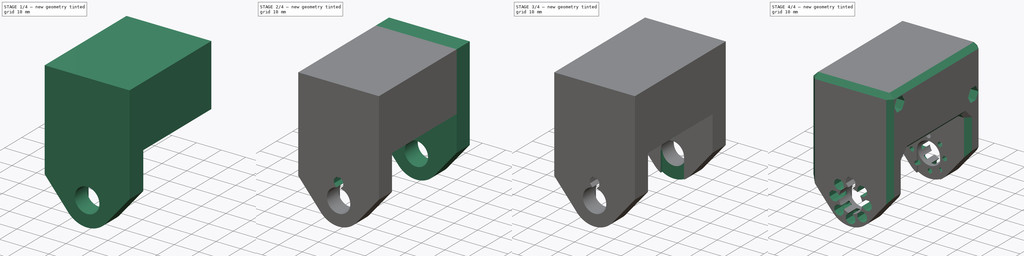
[diagram: build sequence overview — one tinted view per stage of 4, left to right]
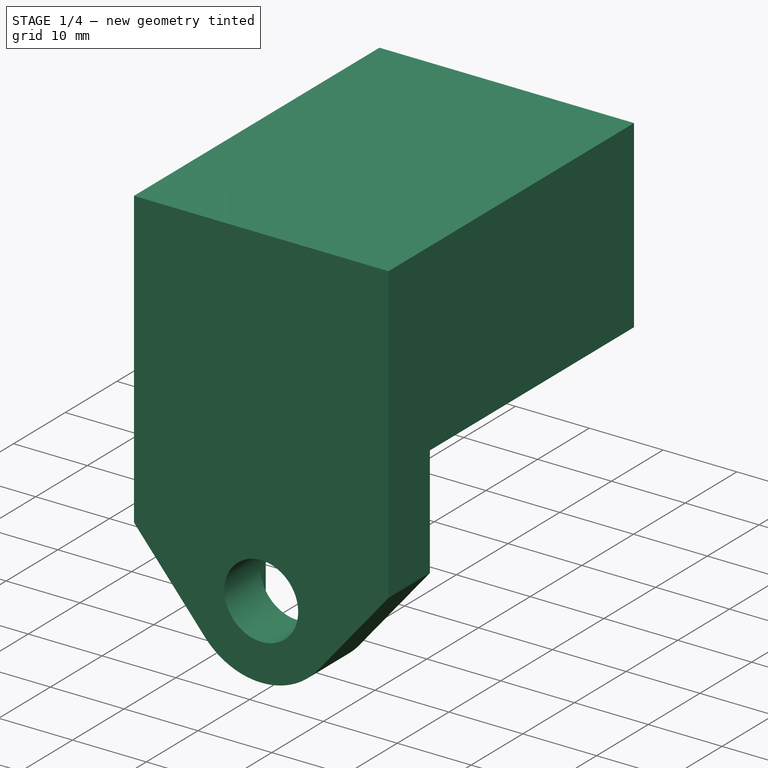
[diagram: stage 1 of 4 — iso view after this stage's code; geometry added in this stage tinted green]
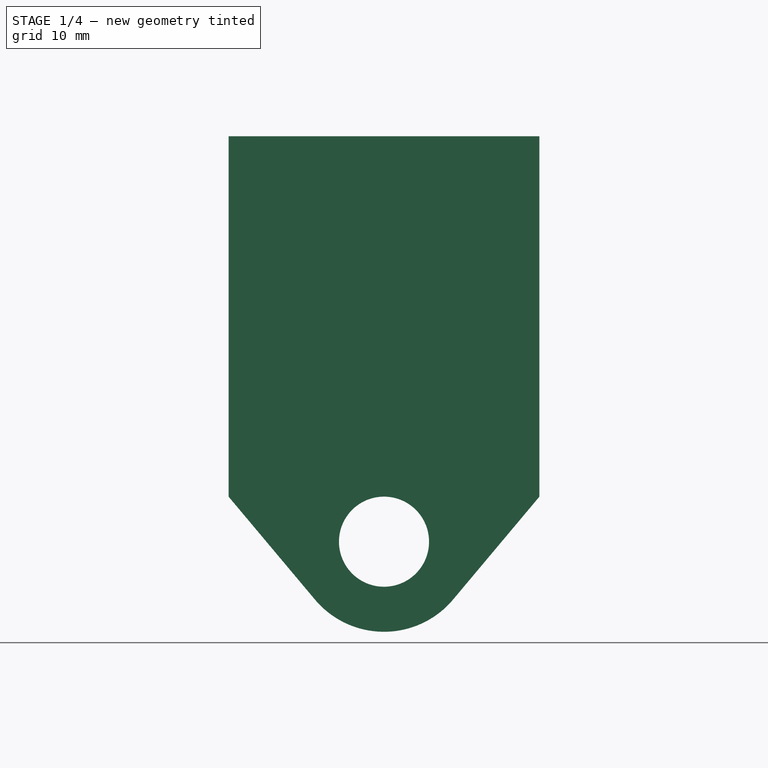
[diagram: stage 1 of 4 — front view after this stage's code; geometry added in this stage tinted green]
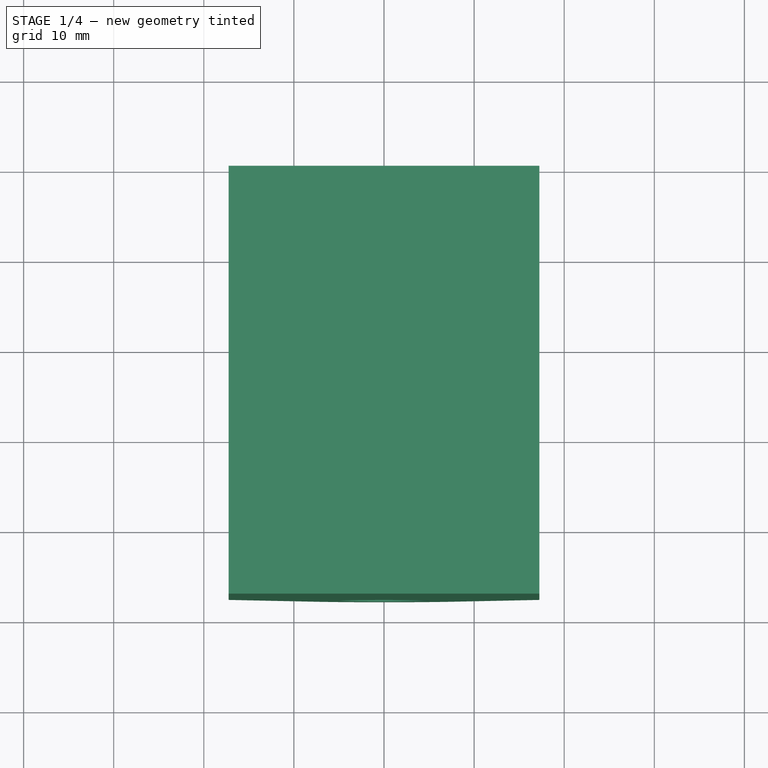
[diagram: stage 1 of 4 — top view after this stage's code; geometry added in this stage tinted green]
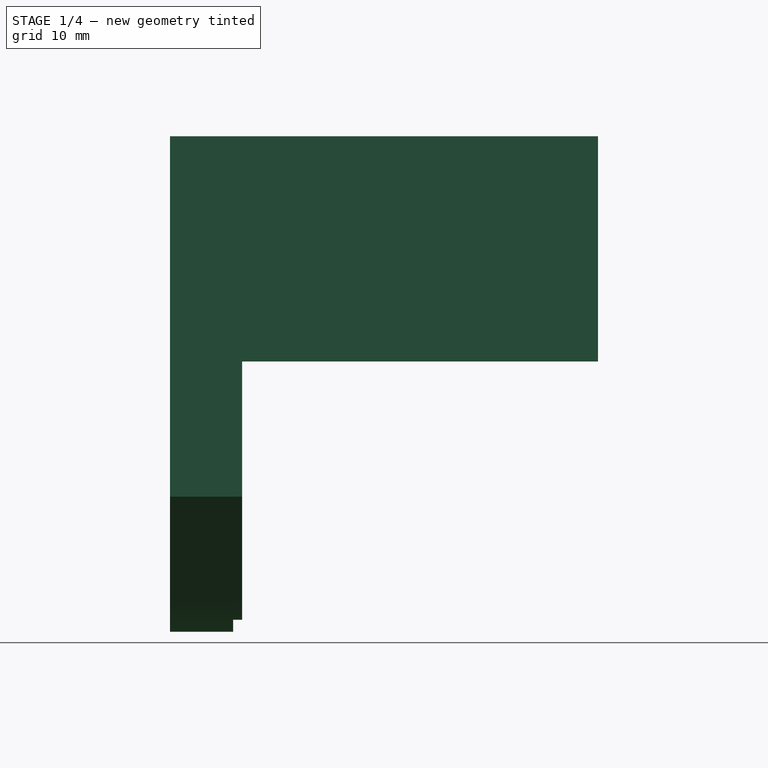
[diagram: stage 1 of 4 — right view after this stage's code; geometry added in this stage tinted green]
FCSTD DOCUMENT  (FreeCAD 0.21R33668 +26 (Git))
Label: Leg_roll_pitch
License: All rights reserved
LicenseURL: https://en.wikipedia.org/wiki/All_rights_reserved
objects: Sketcher::SketchObject×10, PartDesign::Pocket×7, PartDesign::Pad×3, PartDesign::Chamfer×2, PartDesign::PolarPattern×1, PartDesign::Body×1
note: 36 computed .brp shape members not serialized (recipe doc carries the construction recipe); baked Part::Feature solids carry a one-line shape summary decoded from their .brp

FEATURE [Sketcher::SketchObject] Sketch001  label="Sketch002"
  FullyConstrained = true
  MapMode = 5
  Support = -> [XY_Plane]
  expr: Constraints[11] = 39.5 - 2 - 2 - 1
  sketch-geometry (5):
    g0: LineSegment StartX=17.25 StartY=-19.75 StartZ=0 EndX=17.25 EndY=19.75 EndZ=0
    g1: LineSegment StartX=17.25 StartY=19.75 StartZ=0 EndX=-17.25 EndY=19.75 EndZ=0
    g2: LineSegment StartX=-17.25 StartY=19.75 StartZ=0 EndX=-17.25 EndY=-19.75 EndZ=0
    g3: LineSegment StartX=-17.25 StartY=-19.75 StartZ=0 EndX=17.25 EndY=-19.75 EndZ=0
    g4: GeomPoint X=0 Y=0 Z=0
  constraints (12):
    c: Coincident(g0,g1)
    c: Coincident(g1,g2)
    c: Coincident(g2,g3)
    c: Coincident(g3,g0)
    c: Horizontal(g1)
    c: Horizontal(g3)
    c: Vertical(g0)
    c: Vertical(g2)
    c: Symmetric(g1,g0,g4)
    c: Coincident(g4,g-1)
    c: DistanceY(g2,g2) = 39.5
    c: DistanceX(g1,g1) = 34.5
FEATURE [PartDesign::Pad] Pad
  Direction = (0,0,1)
  Length = 25
  Length2 = 10
  Profile = -> Sketch001
  ReferenceAxis = -> Sketch001 [N_Axis]
  Type = 0
FEATURE [Sketcher::SketchObject] Sketch  label="Sketch001"
  ExternalGeometry = -> [Pad]
  FullyConstrained = true
  MapMode = 5
  Placement = pos=(0,-19.75,0) rot=(1,0,0;1.5708rad)
  Support = -> [Pad]
  sketch-geometry (8):
    g0: LineSegment StartX=-7.6603 StartY=-26.428 StartZ=0 EndX=-17.25 EndY=-15 EndZ=0
    g1: LineSegment StartX=7.6603 StartY=-26.428 StartZ=0 EndX=17.25 EndY=-15 EndZ=0
    g2: Circle CenterX=0 CenterY=-20 CenterZ=0 NormalX=0 NormalY=0 NormalZ=1 AngleXU=0 Radius=16
    g3: LineSegment StartX=-17.25 StartY=-15 StartZ=0 EndX=-17.25 EndY=25 EndZ=0
    g4: LineSegment StartX=17.25 StartY=-15 StartZ=0 EndX=17.25 EndY=25 EndZ=0
    g5: LineSegment StartX=-17.25 StartY=25 StartZ=0 EndX=17.25 EndY=25 EndZ=0
    g6: ArcOfCircle CenterX=0 CenterY=-20 CenterZ=0 NormalX=0 NormalY=0 NormalZ=1 AngleXU=0 Radius=10 StartAngle=3.83975 EndAngle=5.58503
    g7: Circle CenterX=0 CenterY=-20 CenterZ=0 NormalX=0 NormalY=0 NormalZ=1 AngleXU=0 Radius=5
  constraints (19):
    c: Diameter(g2) = 32
    c: Coincident(g3,g0)
    c: Vertical(g3)
    c: Coincident(g4,g1)
    c: Vertical(g4)
    c: Equal(g3,g4)
    c: Coincident(g5,g-4)
    c: Coincident(g5,g-5)
    c: Coincident(g3,g5)
    c: Coincident(g5,g4)
    c: DistanceY(g0,g-6) = 15
    c: PointOnObject(g6,g-2)
    c: Diameter(g6) = 20
    c: Tangent(g0,g6) = 1.5708
    c: Tangent(g1,g6) = -1.5708
    c: Coincident(g2,g6)
    c: Coincident(g7,g6)
    c: Diameter(g7) = 10
    c: DistanceY(g6,g-6) = 20
FEATURE [PartDesign::Pad] Pad001
  BaseFeature = -> Pad
  Direction = (0,-1,2e-16)
  Length = 8
  Length2 = 10
  Profile = -> Sketch
  ReferenceAxis = -> Sketch [N_Axis]
  Type = 0
FEATURE [Sketcher::SketchObject] Sketch005  label="Sketch006"
  ExternalGeometry = -> [Pad001]
  FullyConstrained = true
  MapMode = 5
  Placement = pos=(0,-19.75,5.3e-15) rot=(0,0.707107,0.707107;3.14159rad)
  Support = -> [Pad001]
  sketch-geometry (4):
    g0: LineSegment StartX=-5 StartY=-20 StartZ=0 EndX=-5 EndY=-28.6603 EndZ=0
    g1: LineSegment StartX=5 StartY=-20 StartZ=0 EndX=5 EndY=-28.6603 EndZ=0
    g2: ArcOfCircle CenterX=-1e-16 CenterY=-20 CenterZ=0 NormalX=0 NormalY=0 NormalZ=1 AngleXU=0 Radius=5 StartAngle=3.14159 EndAngle=6.28319
    g3: ArcOfCircle CenterX=-1e-16 CenterY=-20 CenterZ=0 NormalX=0 NormalY=0 NormalZ=1 AngleXU=0 Radius=10 StartAngle=4.18879 EndAngle=5.23599
  constraints (11):
    c: PointOnObject(g0,g-4)
    c: Tangent(g0,g-3) = -1.5708
    c: Tangent(g1,g-3) = 1.5708
    c: Vertical(g0)
    c: Vertical(g1)
    c: Coincident(g2,g0)
    c: Coincident(g2,g1)
    c: Coincident(g3,g2)
    c: Coincident(g3,g0)
    c: Coincident(g3,g1)
    c: Equal(g2,g-3)
FEATURE [PartDesign::Pocket] Pocket
  BaseFeature = -> Pad001
  Direction = (0,-1,2e-16)
  Length = 1
  Length2 = 5
  Profile = -> Sketch005
  ReferenceAxis = -> Sketch005 [N_Axis]
  Type = 0
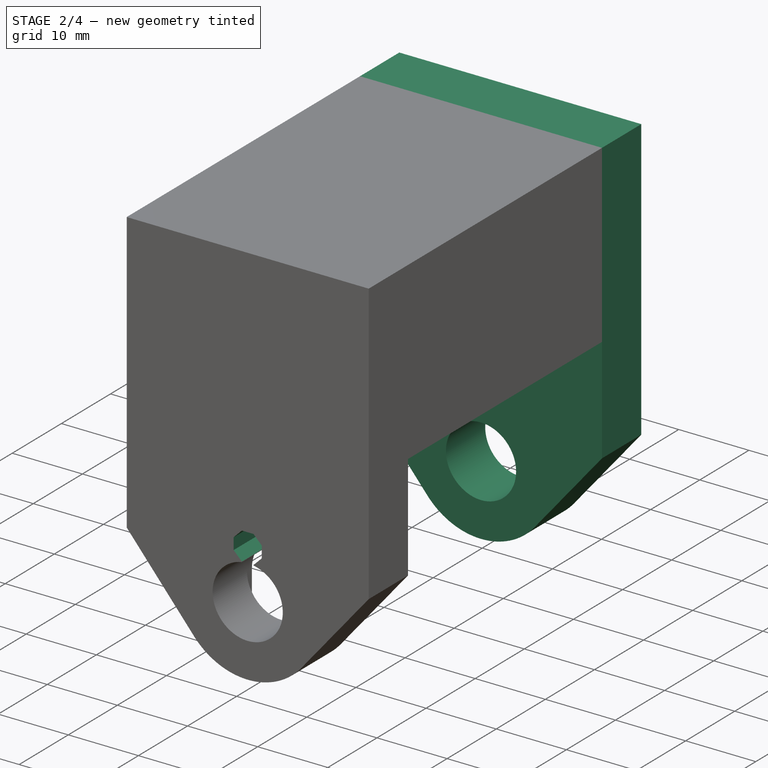
[diagram: stage 2 of 4 — iso view after this stage's code; geometry added in this stage tinted green]
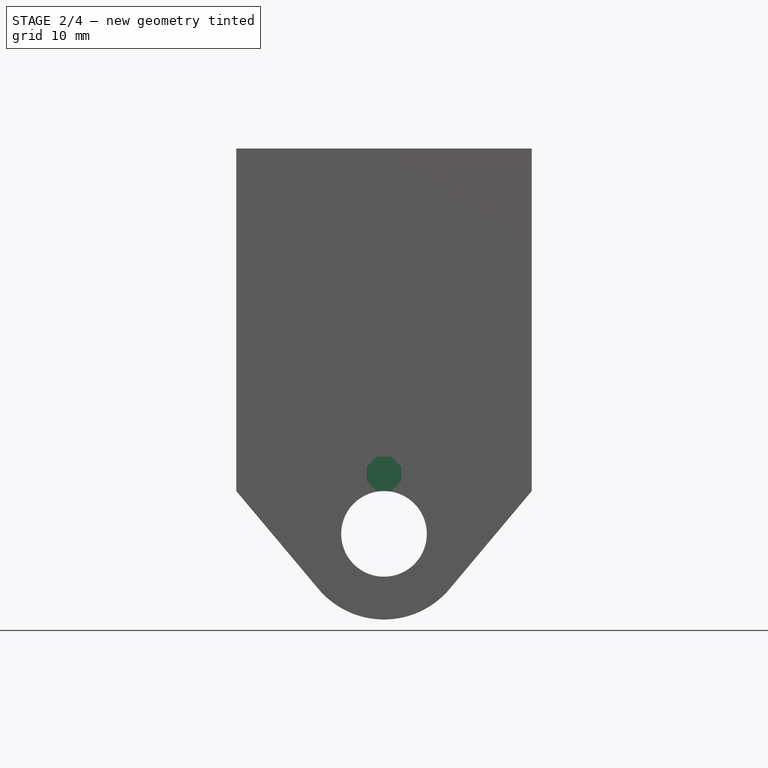
[diagram: stage 2 of 4 — front view after this stage's code; geometry added in this stage tinted green]
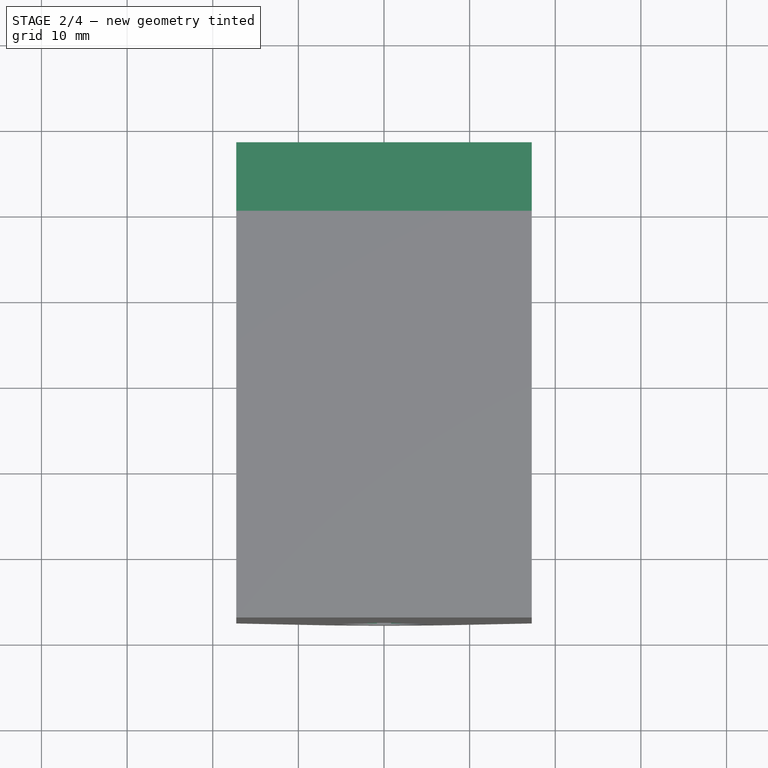
[diagram: stage 2 of 4 — top view after this stage's code; geometry added in this stage tinted green]
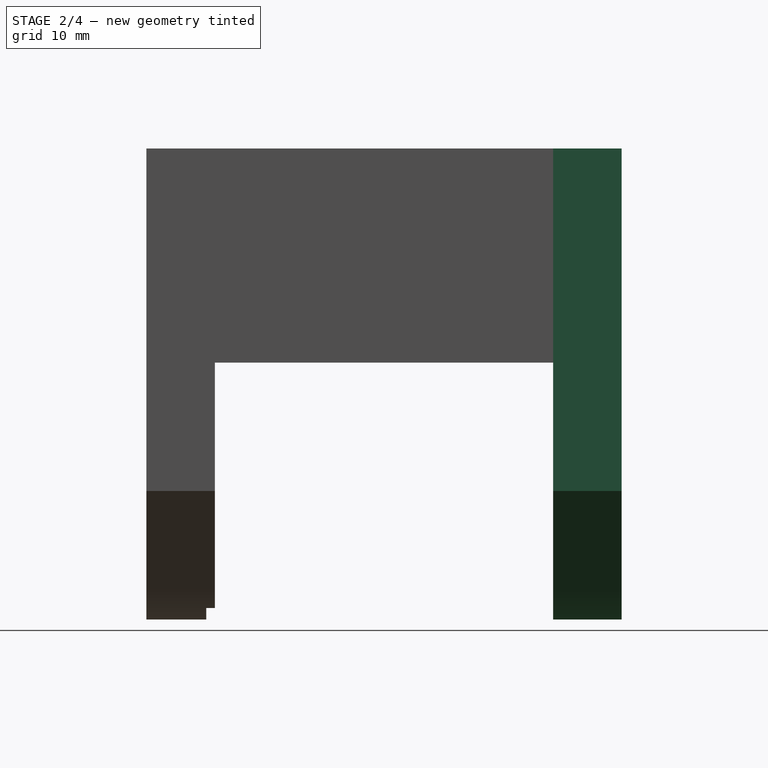
[diagram: stage 2 of 4 — right view after this stage's code; geometry added in this stage tinted green]
FEATURE [Sketcher::SketchObject] Sketch006  label="Sketch007"
  ExternalGeometry = -> [Pocket]
  FullyConstrained = true
  MapMode = 5
  Placement = pos=(1e-16,-27.75,7.4e-15) rot=(1,0,0;1.5708rad)
  Support = -> [Pocket]
  sketch-geometry (15):
    g0: Circle CenterX=0 CenterY=-20 CenterZ=0 NormalX=0 NormalY=0 NormalZ=1 AngleXU=0 Radius=7
    g1: LineSegment StartX=0 StartY=-20 StartZ=0 EndX=0 EndY=-13 EndZ=0
    g2: LineSegment StartX=-2 StartY=-12.1716 StartZ=0 EndX=-2 EndY=-13.8284 EndZ=0
    g3: LineSegment StartX=-2 StartY=-13.8284 StartZ=0 EndX=-0.828427 EndY=-15 EndZ=0
    g4: LineSegment StartX=-0.828427 StartY=-15 StartZ=0 EndX=0.828427 EndY=-15 EndZ=0
    g5: LineSegment StartX=0.828427 StartY=-15 StartZ=0 EndX=2 EndY=-13.8284 EndZ=0
    g6: LineSegment StartX=2 StartY=-13.8284 StartZ=0 EndX=2 EndY=-12.1716 EndZ=0
    g7: LineSegment StartX=2 StartY=-12.1716 StartZ=0 EndX=0.828427 EndY=-11 EndZ=0
    g8: LineSegment StartX=0.828427 StartY=-11 StartZ=0 EndX=-0.828427 EndY=-11 EndZ=0
    g9: LineSegment StartX=-0.828427 StartY=-11 StartZ=0 EndX=-2 EndY=-12.1716 EndZ=0
    g10: Circle CenterX=0 CenterY=-13 CenterZ=0 NormalX=0 NormalY=0 NormalZ=1 AngleXU=0 Radius=2.16478
    g11: Circle CenterX=0 CenterY=-13 CenterZ=0 NormalX=0 NormalY=0 NormalZ=1 AngleXU=0 Radius=2
    g12: LineSegment StartX=-0.828427 StartY=-15 StartZ=0 EndX=-0.828427 EndY=-15.0691 EndZ=0
    g13: LineSegment StartX=0.828427 StartY=-15 StartZ=0 EndX=0.828427 EndY=-15.0691 EndZ=0
    g14: ArcOfCircle CenterX=0 CenterY=-20 CenterZ=0 NormalX=0 NormalY=0 NormalZ=1 AngleXU=0 Radius=5 StartAngle=1.40434 EndAngle=1.73725
  constraints (35):
    c: Coincident(g0,g-3)
    c: Coincident(g1,g0)
    c: PointOnObject(g1,g0)
    c: Vertical(g1)
    c: Diameter(g0) = 14
    c: Coincident(g2,g3)
    c: Coincident(g3,g4)
    c: Coincident(g4,g5)
    c: Coincident(g5,g6)
    c: Coincident(g6,g7)
    c: Coincident(g7,g8)
    c: Coincident(g8,g9)
    c: Coincident(g9,g2)
    c: Equal(g2, g3-g9) x7
    c: PointOnObject(g2,g10)
    c: PointOnObject(g3,g10)
    c: PointOnObject(g4,g10)
    c: PointOnObject(g5,g10)
    c: PointOnObject(g6,g10)
    c: PointOnObject(g7,g10)
    c: PointOnObject(g8,g10)
    c: PointOnObject(g9,g10)
    c: Coincident(g10,g1)
    c: Coincident(g11,g1)
    c: Diameter(g11) = 4
    c: Horizontal(g8)
    c: Tangent(g8,g11)
    c: Coincident(g12,g3)
    c: Vertical(g12)
    c: Coincident(g13,g5)
    c: Vertical(g13)
    c: Coincident(g14,g0)
    c: Coincident(g14,g12)
    c: Coincident(g14,g13)
    c: Equal(g14,g-3)
FEATURE [PartDesign::Pocket] Pocket001
  BaseFeature = -> Pocket
  Direction = (0,1,-2e-16)
  Length = 5
  Length2 = 5
  Profile = -> Sketch006
  ReferenceAxis = -> Sketch006 [N_Axis]
  Type = 0
FEATURE [Sketcher::SketchObject] Sketch007  label="Sketch008"
  ExternalGeometry = -> [Pocket001]
  FullyConstrained = true
  MapMode = 5
  Placement = pos=(0,-22.75,0) rot=(1,0,0;1.5708rad)
  Support = -> [Pocket001]
  sketch-geometry (10):
    g0: LineSegment StartX=0 StartY=-20 StartZ=0 EndX=0 EndY=-13 EndZ=0
    g1: LineSegment StartX=-0.382683 StartY=-12.0761 StartZ=0 EndX=-0.92388 EndY=-12.6173 EndZ=0
    g2: LineSegment StartX=-0.92388 StartY=-12.6173 StartZ=0 EndX=-0.92388 EndY=-13.3827 EndZ=0
    g3: LineSegment StartX=-0.92388 StartY=-13.3827 StartZ=0 EndX=-0.382683 EndY=-13.9239 EndZ=0
    g4: LineSegment StartX=-0.382683 StartY=-13.9239 StartZ=0 EndX=0.382683 EndY=-13.9239 EndZ=0
    g5: LineSegment StartX=0.382683 StartY=-13.9239 StartZ=0 EndX=0.92388 EndY=-13.3827 EndZ=0
    g6: LineSegment StartX=0.92388 StartY=-13.3827 StartZ=0 EndX=0.92388 EndY=-12.6173 EndZ=0
    g7: LineSegment StartX=0.92388 StartY=-12.6173 StartZ=0 EndX=0.382683 EndY=-12.0761 EndZ=0
    g8: LineSegment StartX=0.382683 StartY=-12.0761 StartZ=0 EndX=-0.382683 EndY=-12.0761 EndZ=0
    g9: Circle CenterX=0 CenterY=-13 CenterZ=0 NormalX=0 NormalY=0 NormalZ=1 AngleXU=0 Radius=1
  constraints (23):
    c: Coincident(g0,g-3)
    c: DistanceY(g0,g0) = 7
    c: Coincident(g1,g2)
    c: Coincident(g2,g3)
    c: Coincident(g3,g4)
    c: Coincident(g4,g5)
    c: Coincident(g5,g6)
    c: Coincident(g6,g7)
    c: Coincident(g7,g8)
    c: Coincident(g8,g1)
    c: Equal(g1, g2-g8) x7
    c: PointOnObject(g1,g9)
    c: PointOnObject(g2,g9)
    c: PointOnObject(g3,g9)
    c: PointOnObject(g4,g9)
    c: PointOnObject(g5,g9)
    c: PointOnObject(g6,g9)
    c: PointOnObject(g7,g9)
    c: PointOnObject(g8,g9)
    c: Coincident(g9,g0)
    c: Diameter(g9) = 2
    c: Horizontal(g8)
    c: Vertical(g0)
FEATURE [PartDesign::Pocket] Pocket002
  BaseFeature = -> Pocket001
  Direction = (0,1,-2e-16)
  Length = 5
  Length2 = 5
  Profile = -> Sketch007
  ReferenceAxis = -> Sketch007 [N_Axis]
  Type = 0
FEATURE [Sketcher::SketchObject] Sketch008  label="Sketch009"
  ExternalGeometry = -> [Pad]
  FullyConstrained = true
  MapMode = 5
  Placement = pos=(0,19.75,0) rot=(1,0,0;1.5708rad)
  expr: Constraints[0] = Sketch.Constraints[0]
  expr: Constraints[10] = Sketch.Constraints[10]
  expr: Constraints[12] = Sketch.Constraints[12]
  expr: Constraints[17] = Sketch.Constraints[17]
  expr: Constraints[18] = Sketch.Constraints[18]
  sketch-geometry (8):
    g0: LineSegment StartX=-7.6603 StartY=-26.428 StartZ=0 EndX=-17.25 EndY=-15 EndZ=0
    g1: LineSegment StartX=7.6603 StartY=-26.428 StartZ=0 EndX=17.25 EndY=-15 EndZ=0
    g2: Circle CenterX=0 CenterY=-20 CenterZ=0 NormalX=0 NormalY=0 NormalZ=1 AngleXU=0 Radius=16
    g3: LineSegment StartX=-17.25 StartY=-15 StartZ=0 EndX=-17.25 EndY=25 EndZ=0
    g4: LineSegment StartX=17.25 StartY=-15 StartZ=0 EndX=17.25 EndY=25 EndZ=0
    g5: LineSegment StartX=-17.25 StartY=25 StartZ=0 EndX=17.25 EndY=25 EndZ=0
    g6: ArcOfCircle CenterX=0 CenterY=-20 CenterZ=0 NormalX=0 NormalY=0 NormalZ=1 AngleXU=0 Radius=10 StartAngle=3.83975 EndAngle=5.58503
    g7: Circle CenterX=0 CenterY=-20 CenterZ=0 NormalX=0 NormalY=0 NormalZ=1 AngleXU=0 Radius=5
  constraints (19):
    c: Diameter(g2) = 32
    c: Coincident(g3,g0)
    c: Vertical(g3)
    c: Coincident(g4,g1)
    c: Vertical(g4)
    c: Equal(g3,g4)
    c: Coincident(g5,g-4)
    c: Coincident(g5,g-5)
    c: Coincident(g3,g5)
    c: Coincident(g5,g4)
    c: DistanceY(g0,g-6) = 15
    c: PointOnObject(g6,g-2)
    c: Diameter(g6) = 20
    c: Tangent(g0,g6) = 1.5708
    c: Tangent(g1,g6) = -1.5708
    c: Coincident(g2,g6)
    c: Coincident(g7,g6)
    c: Diameter(g7) = 10
    c: DistanceY(g6,g-6) = 20
FEATURE [PartDesign::Pad] Pad002
  BaseFeature = -> Pocket002
  Direction = (0,-1,2e-16)
  Length = 8
  Length2 = 10
  Profile = -> Sketch008
  ReferenceAxis = -> Sketch008 [N_Axis]
  Reversed = true
  Type = 0
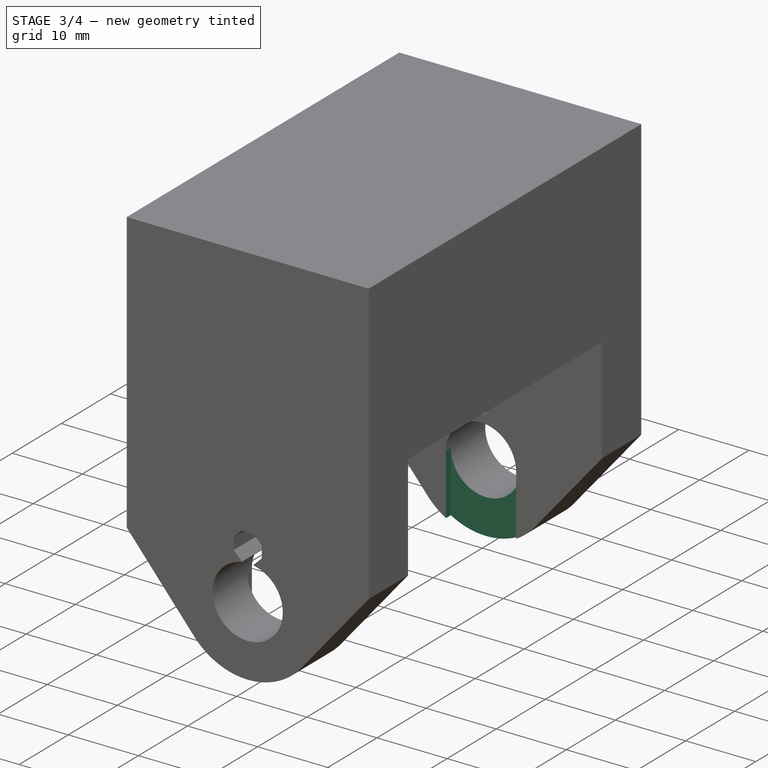
[diagram: stage 3 of 4 — iso view after this stage's code; geometry added in this stage tinted green]
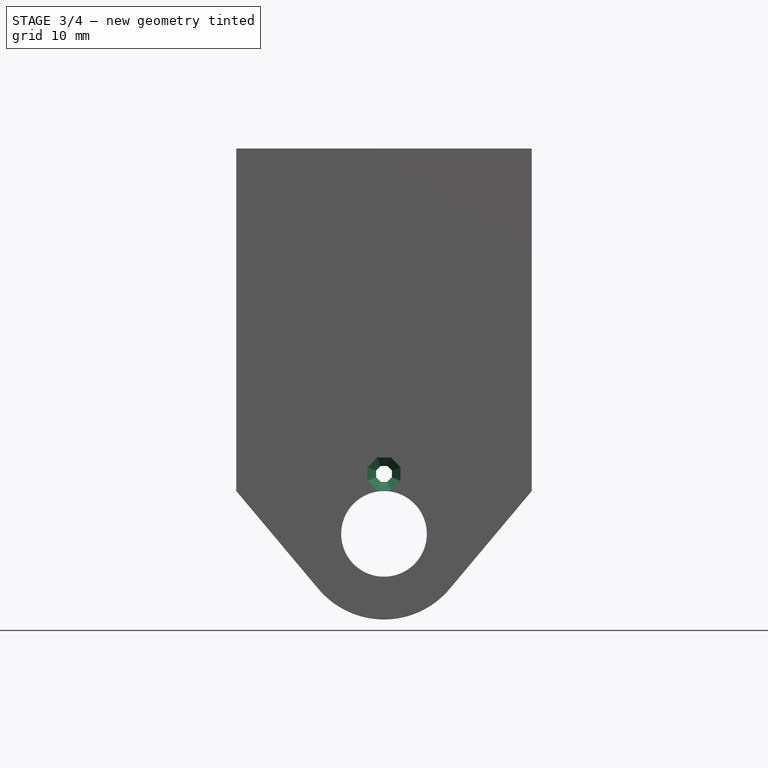
[diagram: stage 3 of 4 — front view after this stage's code; geometry added in this stage tinted green]
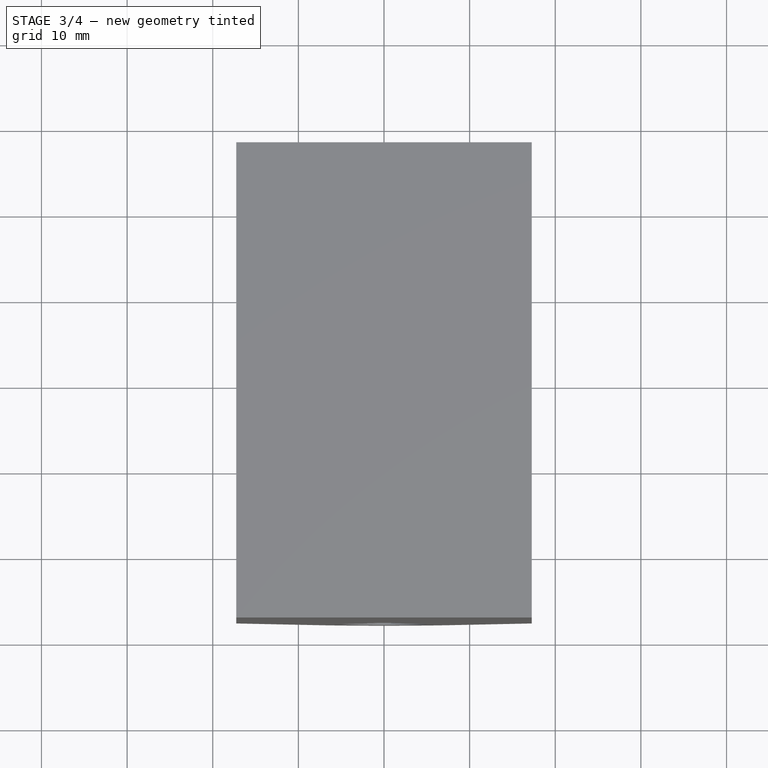
[diagram: stage 3 of 4 — top view after this stage's code; geometry added in this stage tinted green]
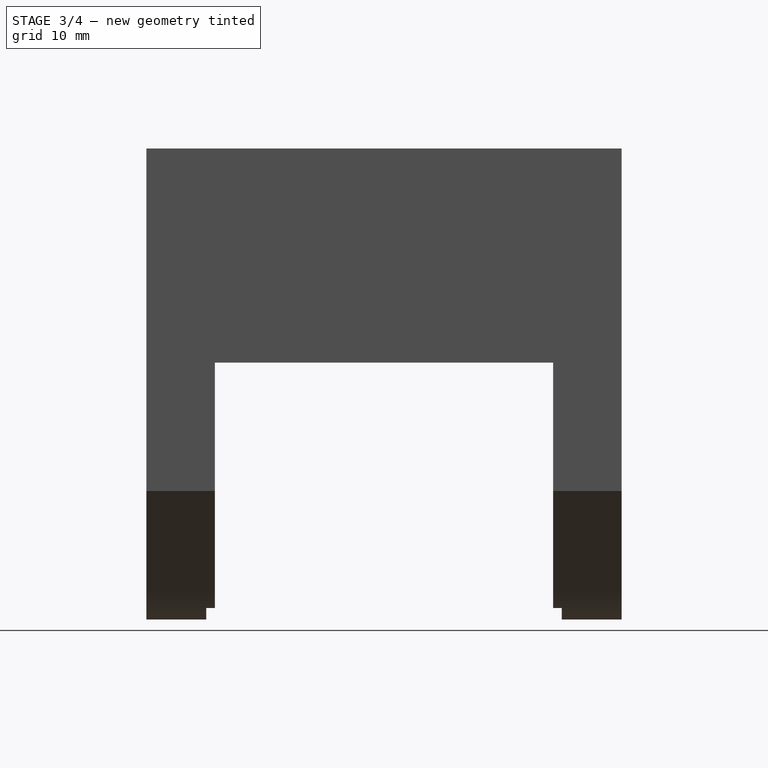
[diagram: stage 3 of 4 — right view after this stage's code; geometry added in this stage tinted green]
FEATURE [Sketcher::SketchObject] Sketch009  label="Sketch010"
  ExternalGeometry = -> [Pad001]
  FullyConstrained = true
  MapMode = 5
  Placement = pos=(0,19.75,-5.3e-15) rot=(0,0.707107,0.707107;3.14159rad)
  Support = -> [Pad002]
  sketch-geometry (4):
    g0: LineSegment StartX=-5 StartY=-20 StartZ=0 EndX=-5 EndY=-28.6603 EndZ=0
    g1: LineSegment StartX=5 StartY=-20 StartZ=0 EndX=5 EndY=-28.6603 EndZ=0
    g2: ArcOfCircle CenterX=-1e-16 CenterY=-20 CenterZ=0 NormalX=0 NormalY=0 NormalZ=1 AngleXU=0 Radius=5 StartAngle=3.14159 EndAngle=6.28319
    g3: ArcOfCircle CenterX=-1e-16 CenterY=-20 CenterZ=0 NormalX=0 NormalY=0 NormalZ=1 AngleXU=0 Radius=10 StartAngle=4.18879 EndAngle=5.23599
  constraints (11):
    c: PointOnObject(g0,g-4)
    c: Tangent(g0,g-3) = -1.5708
    c: Tangent(g1,g-3) = 1.5708
    c: Vertical(g0)
    c: Vertical(g1)
    c: Coincident(g2,g0)
    c: Coincident(g2,g1)
    c: Coincident(g3,g2)
    c: Coincident(g3,g0)
    c: Coincident(g3,g1)
    c: Equal(g2,g-3)
FEATURE [PartDesign::Pocket] Pocket003
  BaseFeature = -> Pad002
  Direction = (0,-1,2e-16)
  Length = 1
  Length2 = 5
  Profile = -> Sketch009
  ReferenceAxis = -> Sketch009 [N_Axis]
  Reversed = true
  Type = 0
FEATURE [Sketcher::SketchObject] Sketch010  label="Sketch011"
  ExternalGeometry = -> [Pocket]
  FullyConstrained = true
  MapMode = 5
  Placement = pos=(-1e-16,27.75,-7.4e-15) rot=(1,0,0;1.5708rad)
  Support = -> [Pocket003]
  expr: Constraints[30] = Sketch006.Constraints[30]
  expr: Constraints[4] = Sketch006.Constraints[4]
  sketch-geometry (15):
    g0: Circle CenterX=0 CenterY=-20 CenterZ=0 NormalX=0 NormalY=0 NormalZ=1 AngleXU=0 Radius=7
    g1: LineSegment StartX=0 StartY=-20 StartZ=0 EndX=0 EndY=-13 EndZ=0
    g2: LineSegment StartX=-2 StartY=-12.1716 StartZ=0 EndX=-2 EndY=-13.8284 EndZ=0
    g3: LineSegment StartX=-2 StartY=-13.8284 StartZ=0 EndX=-0.828427 EndY=-15 EndZ=0
    g4: LineSegment StartX=-0.828427 StartY=-15 StartZ=0 EndX=0.828427 EndY=-15 EndZ=0
    g5: LineSegment StartX=0.828427 StartY=-15 StartZ=0 EndX=2 EndY=-13.8284 EndZ=0
    g6: LineSegment StartX=2 StartY=-13.8284 StartZ=0 EndX=2 EndY=-12.1716 EndZ=0
    g7: LineSegment StartX=2 StartY=-12.1716 StartZ=0 EndX=0.828427 EndY=-11 EndZ=0
    g8: LineSegment StartX=0.828427 StartY=-11 StartZ=0 EndX=-0.828427 EndY=-11 EndZ=0
    g9: LineSegment StartX=-0.828427 StartY=-11 StartZ=0 EndX=-2 EndY=-12.1716 EndZ=0
    g10: Circle CenterX=0 CenterY=-13 CenterZ=0 NormalX=0 NormalY=0 NormalZ=1 AngleXU=0 Radius=2.16478
    g11: Circle CenterX=0 CenterY=-13 CenterZ=0 NormalX=0 NormalY=0 NormalZ=1 AngleXU=0 Radius=2
    g12: LineSegment StartX=-0.828427 StartY=-15 StartZ=0 EndX=-0.828427 EndY=-15.0691 EndZ=0
    g13: LineSegment StartX=0.828427 StartY=-15 StartZ=0 EndX=0.828427 EndY=-15.0691 EndZ=0
    g14: ArcOfCircle CenterX=0 CenterY=-20 CenterZ=0 NormalX=0 NormalY=0 NormalZ=1 AngleXU=0 Radius=5 StartAngle=1.40434 EndAngle=1.73725
  constraints (35):
    c: Coincident(g0,g-3)
    c: Coincident(g1,g0)
    c: PointOnObject(g1,g0)
    c: Vertical(g1)
    c: Diameter(g0) = 14
    c: Coincident(g2,g3)
    c: Coincident(g3,g4)
    c: Coincident(g4,g5)
    c: Coincident(g5,g6)
    c: Coincident(g6,g7)
    c: Coincident(g7,g8)
    c: Coincident(g8,g9)
    c: Coincident(g9,g2)
    c: Equal(g2, g3-g9) x7
    c: PointOnObject(g2,g10)
    c: PointOnObject(g3,g10)
    c: PointOnObject(g4,g10)
    c: PointOnObject(g5,g10)
    c: PointOnObject(g6,g10)
    c: PointOnObject(g7,g10)
    c: PointOnObject(g8,g10)
    c: PointOnObject(g9,g10)
    c: Coincident(g10,g1)
    c: Coincident(g11,g1)
    c: Diameter(g11) = 4
    c: Horizontal(g8)
    c: Tangent(g8,g11)
    c: Coincident(g12,g3)
    c: Vertical(g12)
    c: Coincident(g13,g5)
    c: Vertical(g13)
    c: Coincident(g14,g0)
    c: Coincident(g14,g12)
    c: Coincident(g14,g13)
    c: Equal(g14,g-3)
FEATURE [PartDesign::Pocket] Pocket004
  BaseFeature = -> Pocket003
  Direction = (0,1,-2e-16)
  Length = 5
  Length2 = 5
  Profile = -> Sketch010
  ReferenceAxis = -> Sketch010 [N_Axis]
  Reversed = true
  Type = 0
FEATURE [Sketcher::SketchObject] Sketch011  label="Sketch012"
  ExternalGeometry = -> [Pocket001]
  FullyConstrained = true
  MapMode = 5
  Placement = pos=(0,22.75,0) rot=(1,0,0;1.5708rad)
  Support = -> [Pocket004]
  expr: Constraints[1] = Sketch007.Constraints[1]
  expr: Constraints[26] = Sketch007.Constraints[26]
  sketch-geometry (10):
    g0: LineSegment StartX=0 StartY=-20 StartZ=0 EndX=0 EndY=-13 EndZ=0
    g1: LineSegment StartX=-0.382683 StartY=-12.0761 StartZ=0 EndX=-0.92388 EndY=-12.6173 EndZ=0
    g2: LineSegment StartX=-0.92388 StartY=-12.6173 StartZ=0 EndX=-0.92388 EndY=-13.3827 EndZ=0
    g3: LineSegment StartX=-0.92388 StartY=-13.3827 StartZ=0 EndX=-0.382683 EndY=-13.9239 EndZ=0
    g4: LineSegment StartX=-0.382683 StartY=-13.9239 StartZ=0 EndX=0.382683 EndY=-13.9239 EndZ=0
    g5: LineSegment StartX=0.382683 StartY=-13.9239 StartZ=0 EndX=0.92388 EndY=-13.3827 EndZ=0
    g6: LineSegment StartX=0.92388 StartY=-13.3827 StartZ=0 EndX=0.92388 EndY=-12.6173 EndZ=0
    g7: LineSegment StartX=0.92388 StartY=-12.6173 StartZ=0 EndX=0.382683 EndY=-12.0761 EndZ=0
    g8: LineSegment StartX=0.382683 StartY=-12.0761 StartZ=0 EndX=-0.382683 EndY=-12.0761 EndZ=0
    g9: Circle CenterX=0 CenterY=-13 CenterZ=0 NormalX=0 NormalY=0 NormalZ=1 AngleXU=0 Radius=1
  constraints (23):
    c: Coincident(g0,g-3)
    c: DistanceY(g0,g0) = 7
    c: Coincident(g1,g2)
    c: Coincident(g2,g3)
    c: Coincident(g3,g4)
    c: Coincident(g4,g5)
    c: Coincident(g5,g6)
    c: Coincident(g6,g7)
    c: Coincident(g7,g8)
    c: Coincident(g8,g1)
    c: Equal(g1, g2-g8) x7
    c: PointOnObject(g1,g9)
    c: PointOnObject(g2,g9)
    c: PointOnObject(g3,g9)
    c: PointOnObject(g4,g9)
    c: PointOnObject(g5,g9)
    c: PointOnObject(g6,g9)
    c: PointOnObject(g7,g9)
    c: PointOnObject(g8,g9)
    c: Coincident(g9,g0)
    c: Diameter(g9) = 2
    c: Horizontal(g8)
    c: Vertical(g0)
FEATURE [PartDesign::Pocket] Pocket005
  BaseFeature = -> Pocket004
  Direction = (0,1,-2e-16)
  Length = 5
  Length2 = 5
  Profile = -> Sketch011
  ReferenceAxis = -> Sketch011 [N_Axis]
  Reversed = true
  Type = 0
FEATURE [PartDesign::Chamfer] Chamfer
  Angle = 45
  Base = -> Pocket005 [Edge108,Edge106,Edge103,Edge118,Edge116,Edge114,Edge112,Edge110,Edge165,Edge163,Edge161,Edge159,Edge157,Edge155,Edge153,Edge150]
  BaseFeature = -> Pocket005
  ChamferType = 0
  FlipDirection = false
  Size = 1
  Size2 = 1
  SupportTransform = false
  UseAllEdges = false
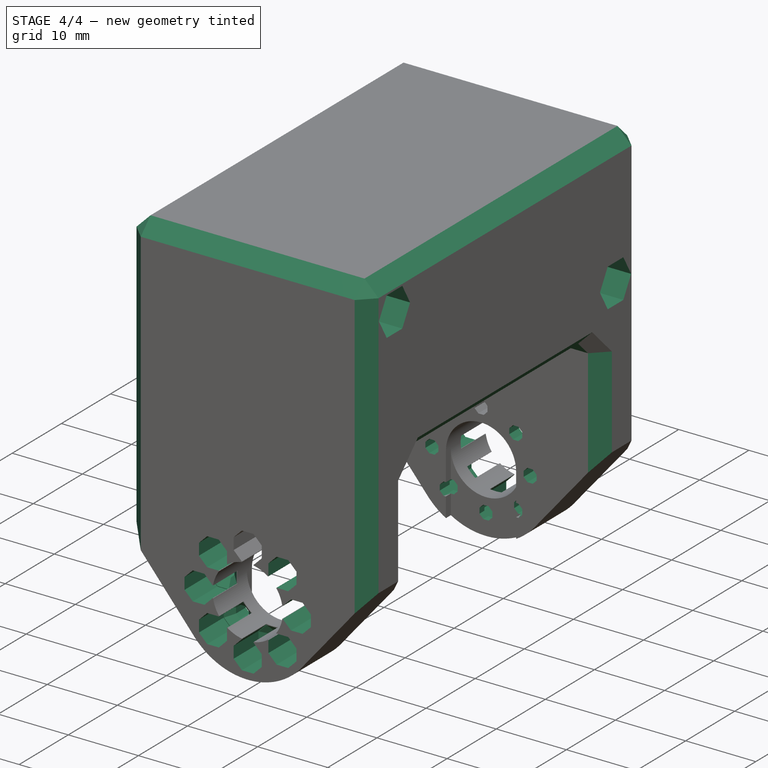
[diagram: stage 4 of 4 — iso view after this stage's code; geometry added in this stage tinted green]
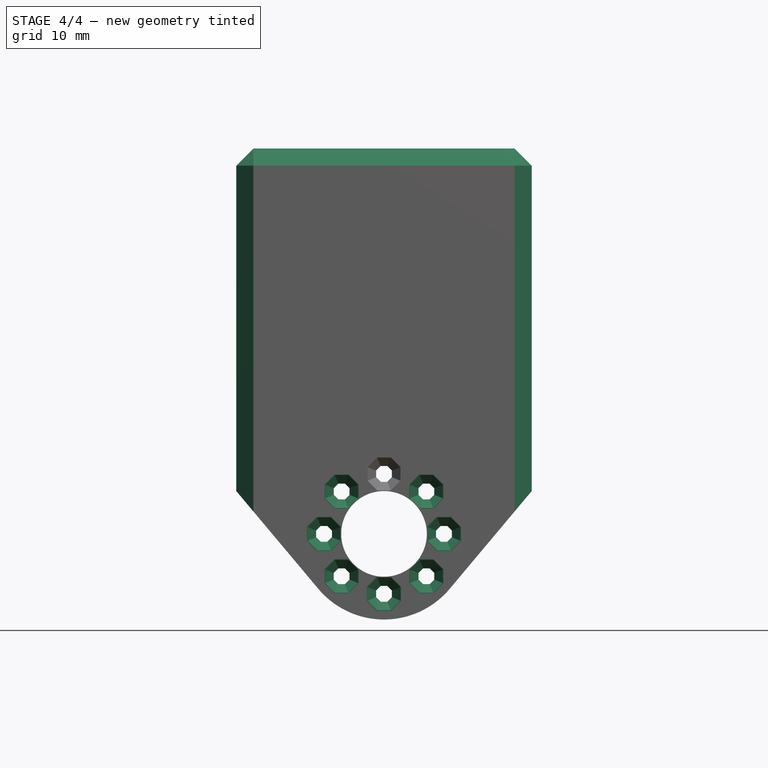
[diagram: stage 4 of 4 — front view after this stage's code; geometry added in this stage tinted green]
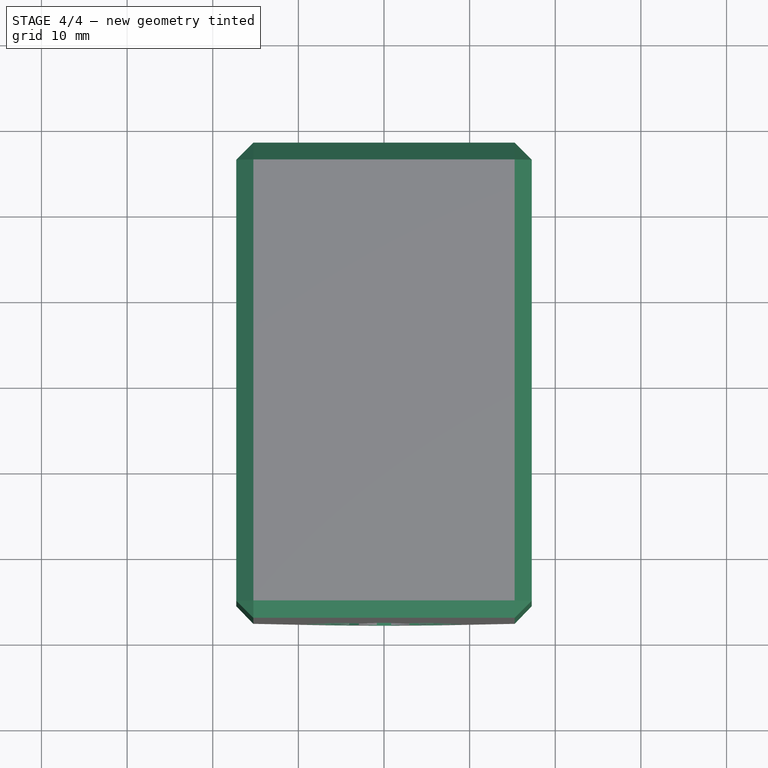
[diagram: stage 4 of 4 — top view after this stage's code; geometry added in this stage tinted green]
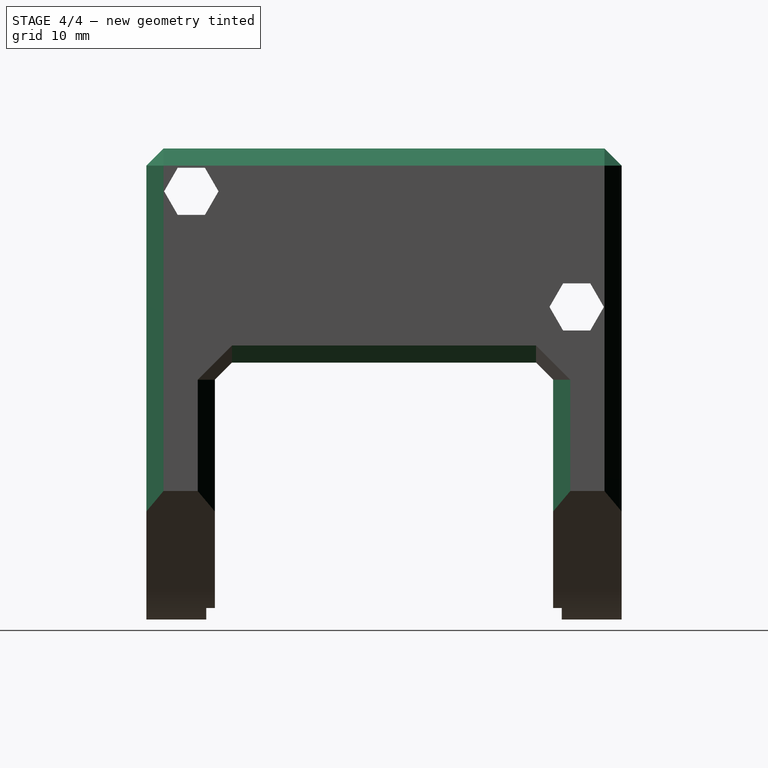
[diagram: stage 4 of 4 — right view after this stage's code; geometry added in this stage tinted green]
FEATURE [PartDesign::PolarPattern] PolarPattern
  Angle = 360
  Axis = -> Chamfer [Edge65]
  BaseFeature = -> Chamfer
  Occurrences = 8
  Originals = -> [Pocket001,Pocket002,Pocket004,Pocket005,Chamfer]
FEATURE [Sketcher::SketchObject] Sketch012  label="Sketch013"
  ExternalGeometry = -> [PolarPattern]
  FullyConstrained = true
  MapMode = 5
  Placement = pos=(-17.25,0,0) rot=(0.57735,-0.57735,-0.57735;2.0944rad)
  Support = -> [PolarPattern]
  sketch-geometry (18):
    g0: Circle CenterX=-22.5 CenterY=6.5 CenterZ=0 NormalX=0 NormalY=0 NormalZ=1 AngleXU=0 Radius=5
    g1: Circle CenterX=22.5 CenterY=20 CenterZ=0 NormalX=0 NormalY=0 NormalZ=1 AngleXU=0 Radius=5
    g2: LineSegment StartX=-22.5 StartY=6.5 StartZ=0 EndX=22.5 EndY=6.5 EndZ=0
    g3: LineSegment StartX=22.5 StartY=6.5 StartZ=0 EndX=22.5 EndY=20 EndZ=0
    g4: LineSegment StartX=-24.0877 StartY=9.25 StartZ=0 EndX=-25.6754 EndY=6.5 EndZ=0
    g5: LineSegment StartX=-25.6754 StartY=6.5 StartZ=0 EndX=-24.0877 EndY=3.75 EndZ=0
    g6: LineSegment StartX=-24.0877 StartY=3.75 StartZ=0 EndX=-20.9123 EndY=3.75 EndZ=0
    g7: LineSegment StartX=-20.9123 StartY=3.75 StartZ=0 EndX=-19.3246 EndY=6.5 EndZ=0
    g8: LineSegment StartX=-19.3246 StartY=6.5 StartZ=0 EndX=-20.9123 EndY=9.25 EndZ=0
    g9: LineSegment StartX=-20.9123 StartY=9.25 StartZ=0 EndX=-24.0877 EndY=9.25 EndZ=0
    g10: Circle CenterX=-22.5 CenterY=6.5 CenterZ=0 NormalX=0 NormalY=0 NormalZ=1 AngleXU=0 Radius=3.17543
    g11: LineSegment StartX=20.9123 StartY=22.75 StartZ=0 EndX=19.3246 EndY=20 EndZ=0
    g12: LineSegment StartX=19.3246 StartY=20 StartZ=0 EndX=20.9123 EndY=17.25 EndZ=0
    g13: LineSegment StartX=20.9123 StartY=17.25 StartZ=0 EndX=24.0877 EndY=17.25 EndZ=0
    g14: LineSegment StartX=24.0877 StartY=17.25 StartZ=0 EndX=25.6754 EndY=20 EndZ=0
    g15: LineSegment StartX=25.6754 StartY=20 StartZ=0 EndX=24.0877 EndY=22.75 EndZ=0
    g16: LineSegment StartX=24.0877 StartY=22.75 StartZ=0 EndX=20.9123 EndY=22.75 EndZ=0
    g17: Circle CenterX=22.5 CenterY=20 CenterZ=0 NormalX=0 NormalY=0 NormalZ=1 AngleXU=0 Radius=3.17543
  constraints (42):
    c: Coincident(g3,g2)
    c: Vertical(g3)
    c: DistanceY(g3,g3) = 13.5
    c: DistanceX(g2,g2) = 45
    c: Symmetric(g0,g2,g-2)
    c: Equal(g0,g1)
    c: Diameter(g1) = 10
    c: Tangent(g1,g-3)
    c: Coincident(g1,g3)
    c: Coincident(g0,g2)
    c: Coincident(g4,g5)
    c: Coincident(g5,g6)
    c: Coincident(g6,g7)
    c: Coincident(g7,g8)
    c: Coincident(g8,g9)
    c: Coincident(g9,g4)
    c: Equal(g4, g5-g9) x5
    c: PointOnObject(g4,g10)
    c: PointOnObject(g5,g10)
    c: PointOnObject(g6,g10)
    c: PointOnObject(g7,g10)
    c: PointOnObject(g8,g10)
    c: PointOnObject(g9,g10)
    c: Coincident(g10,g0)
    c: Coincident(g11,g12)
    c: Coincident(g12,g13)
    c: Coincident(g13,g14)
    c: Coincident(g14,g15)
    c: Coincident(g15,g16)
    c: Coincident(g16,g11)
    c: Equal(g11, g12-g16) x5
    c: PointOnObject(g11,g17)
    c: PointOnObject(g12,g17)
    c: PointOnObject(g13,g17)
    c: PointOnObject(g14,g17)
    c: PointOnObject(g15,g17)
    c: PointOnObject(g16,g17)
    c: Coincident(g17,g1)
    c: Horizontal(g16)
    c: Horizontal(g9)
    c: Equal(g10,g17)
    c: DistanceY(g13,g15) = 5.5
FEATURE [PartDesign::Pocket] Pocket006
  BaseFeature = -> PolarPattern
  Direction = (1,0,0)
  Length = 5
  Length2 = 5
  Profile = -> Sketch012
  ReferenceAxis = -> Sketch012 [N_Axis]
  Refine = true
  Type = 1
FEATURE [PartDesign::Chamfer] Chamfer001
  Angle = 45
  Base = -> Pocket006 [Edge1244,Edge829,Edge1207,Edge284,Edge283,Edge828,Edge173,Edge30,Edge521,Edge31,Edge174,Edge830,Edge520,Edge172,Edge29,Edge285]
  BaseFeature = -> Pocket006
  ChamferType = 0
  FlipDirection = false
  Size = 2
  Size2 = 1
  SupportTransform = false
  UseAllEdges = false
FEATURE [PartDesign::Body] Body
  Group = -> [Sketch,Sketch001,Pad,Pad001,Sketch005,Pocket,Sketch006,Pocket001,Sketch007,Pocket002,Sketch008,Pad002,Sketch009,Pocket003,Sketch010,Pocket004,Sketch011,Pocket005,Chamfer,PolarPattern,Sketch012,Pocket006,Chamfer001]
  Origin = -> Origin
  Tip = -> Chamfer001
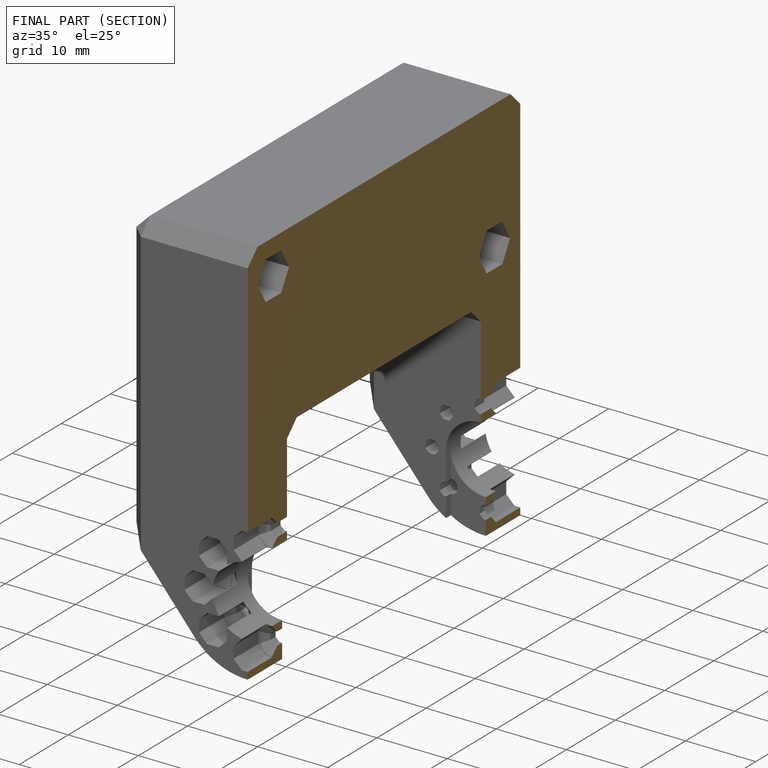
[diagram: finished part — half-section view (interior)]
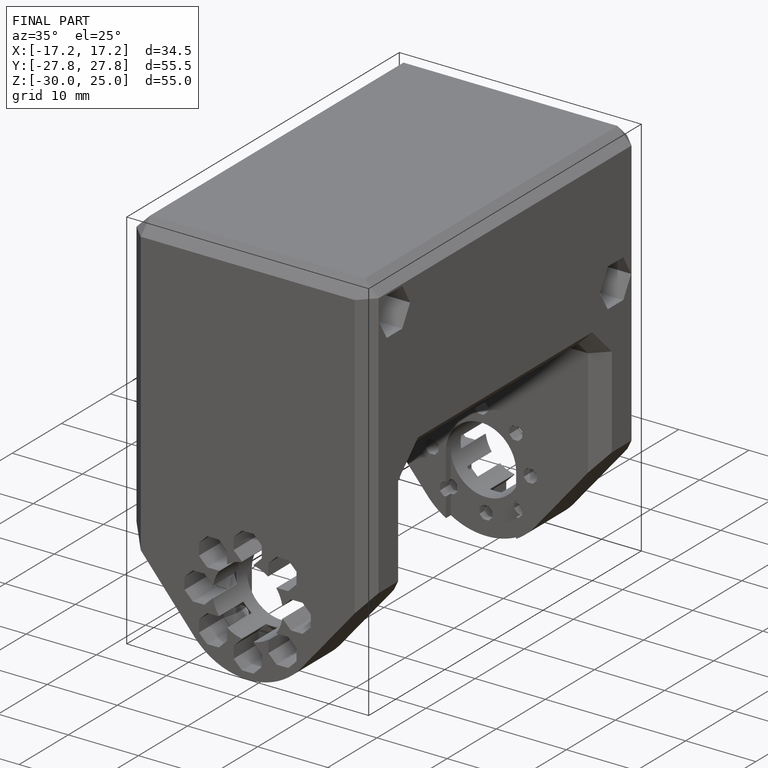
[diagram: finished part — iso view with bounding-box wireframe]
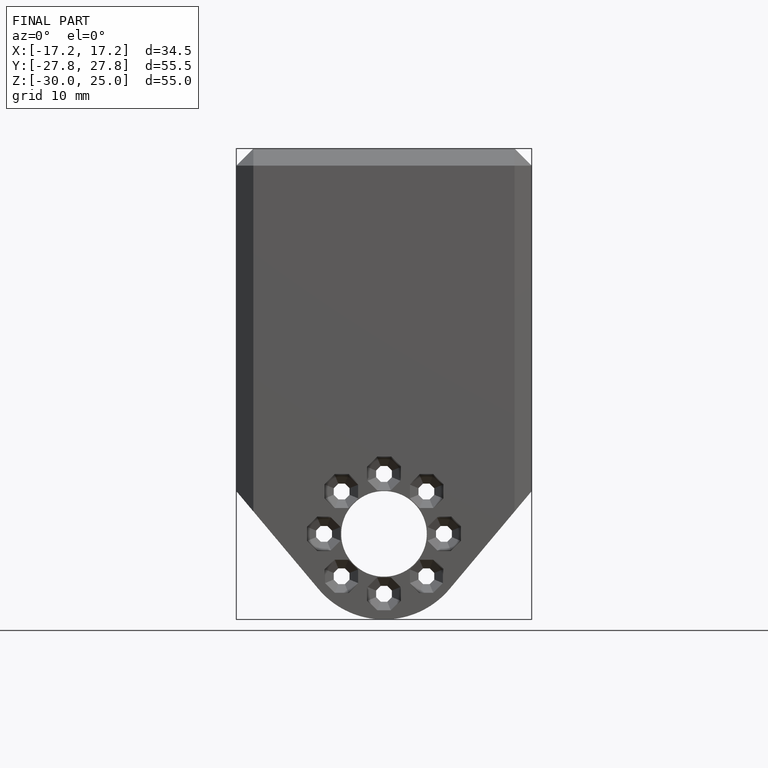
[diagram: finished part — front view with bounding-box wireframe]
